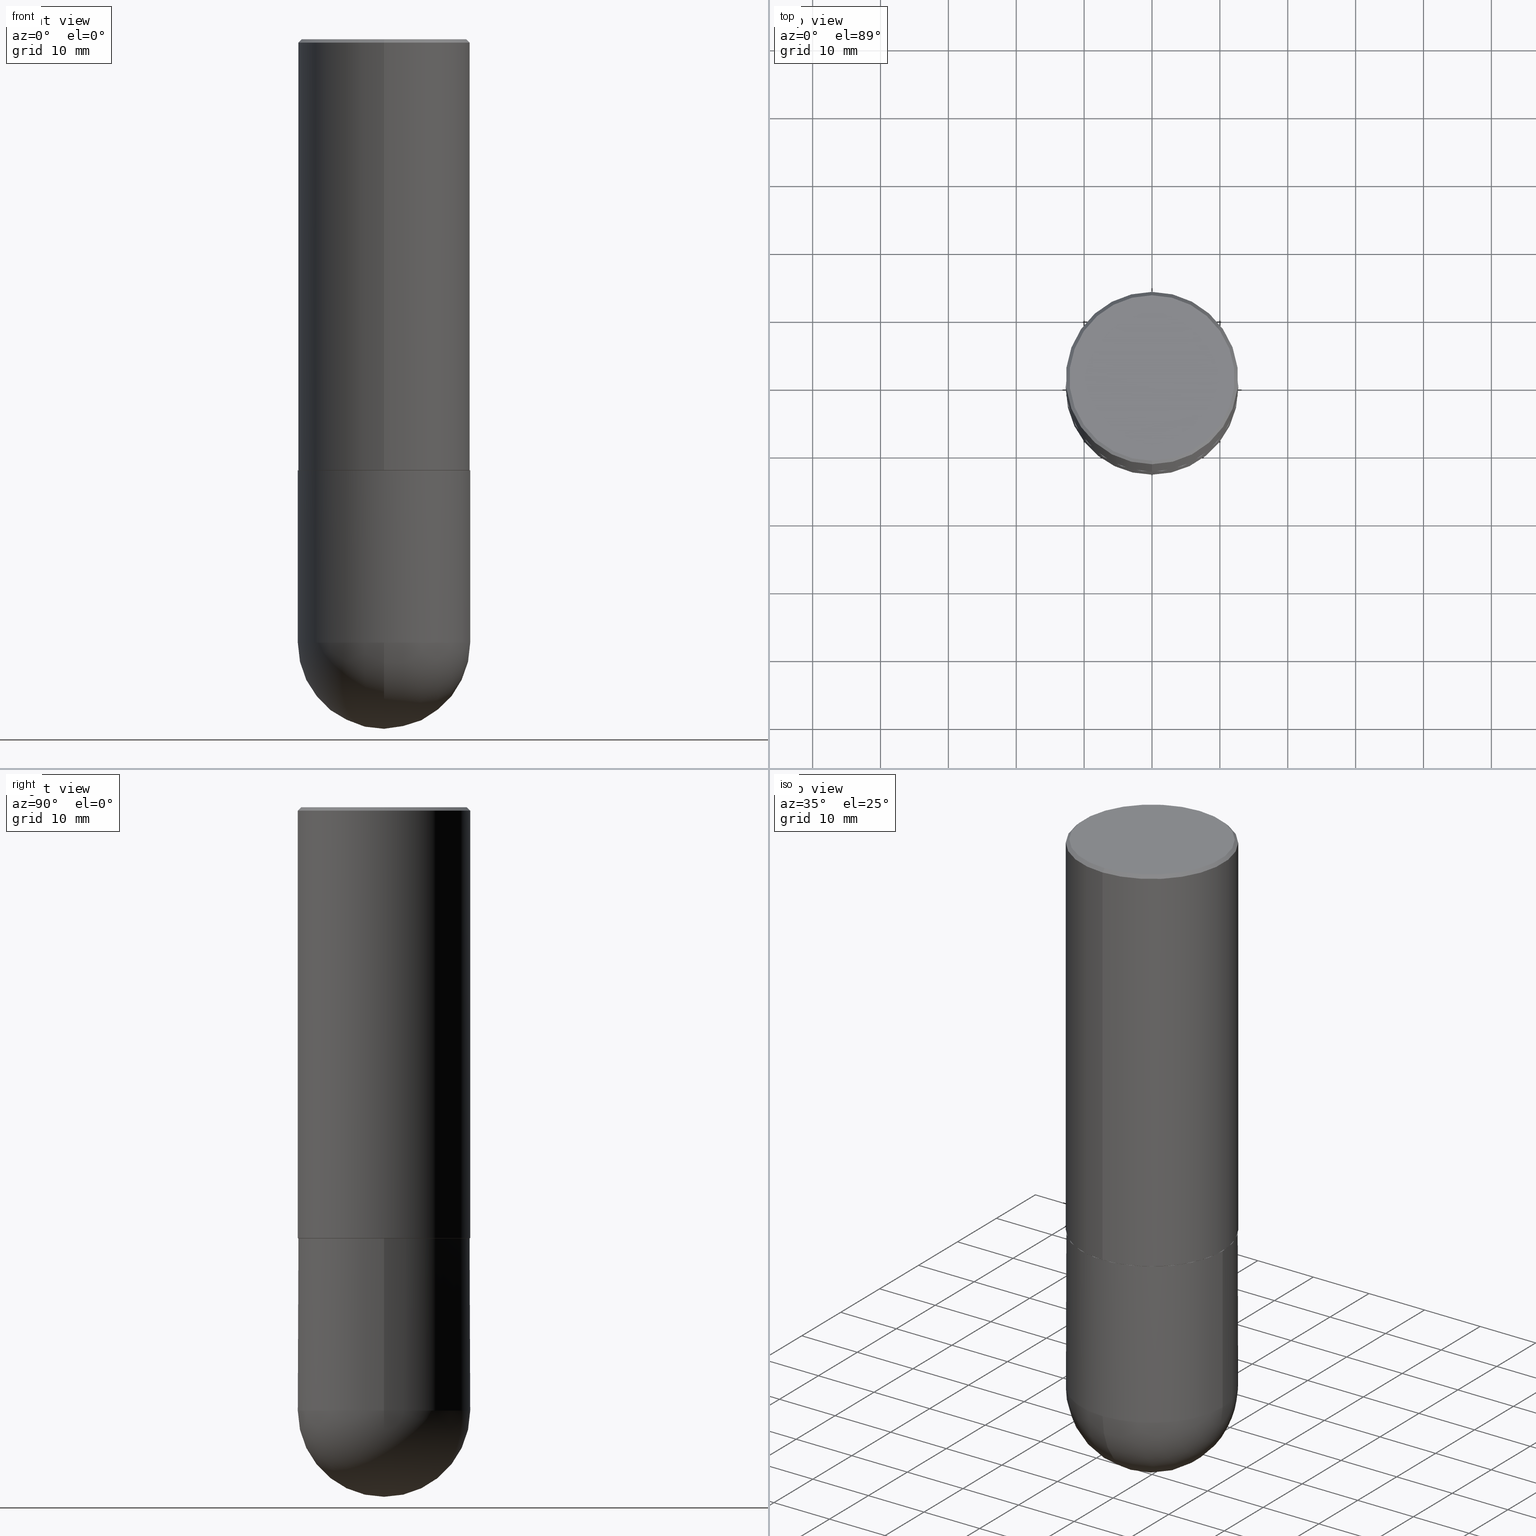
[diagram: canonical four-view strip — front | top / right | iso, engineering-drawing reading convention]
A machine part, canonical four-view strip (front | top / right | iso — engineering-drawing reading convention). The complete STEP part file that produces these views, byte-faithful:
ISO-10303-21;
HEADER;
FILE_DESCRIPTION (( 'STEP AP203' ),
    '1' );
FILE_NAME ('32506.STEP',
    '2024-02-21T17:46:32',
    ( '' ),
    ( '' ),
    'SwSTEP 2.0',
    'SolidWorks 2023',
    '' );
FILE_SCHEMA (( 'CONFIG_CONTROL_DESIGN' ));
ENDSEC;

DATA;
#1 = EDGE_CURVE ( 'NONE', #18, #377, #163, .T. ) ;
#2 = CARTESIAN_POINT ( 'NONE',  ( 3.545608251442960663E-15, 0.4989999999999912283, -2.500000000000001332 ) ) ;
#3 = VECTOR ( 'NONE', #141, 39.37007874015748143 ) ;
#4 = PRODUCT_RELATED_PRODUCT_CATEGORY ( 'detail', '', ( #400 ) ) ;
#5 = DIRECTION ( 'NONE',  ( 1.000000000000000000, -6.982962677686266711E-15, 0.000000000000000000 ) ) ;
#6 = PERSON_AND_ORGANIZATION_ROLE ( 'creator' ) ;
#7 = VERTEX_POINT ( 'NONE', #109 ) ;
#8 = CARTESIAN_POINT ( 'NONE',  ( 8.228021043734090721E-29, -1.269436705409105806E-14, -3.500000000000000000 ) ) ;
#9 = DIRECTION ( 'NONE',  ( -1.000000000000000000, 7.105427357601001070E-15, -4.926315508542082329E-29 ) ) ;
#10 = ORIENTED_EDGE ( 'NONE', *, *, #105, .F. ) ;
#11 = EDGE_LOOP ( 'NONE', ( #173, #112, #302, #232, #179 ) ) ;
#12 = AXIS2_PLACEMENT_3D ( 'NONE', #265, #396, #231 ) ;
#13 = ORIENTED_EDGE ( 'NONE', *, *, #219, .F. ) ;
#14 = PERSON_AND_ORGANIZATION_ROLE ( 'classification_officer' ) ;
#15 = EDGE_LOOP ( 'NONE', ( #234, #314, #293, #328 ) ) ;
#16 = CARTESIAN_POINT ( 'NONE',  ( 0.000000000000000000, 0.000000000000000000, 0.000000000000000000 ) ) ;
#17 = APPROVAL_DATE_TIME ( #53, #156 ) ;
#18 = VERTEX_POINT ( 'NONE', #32 ) ;
#19 = AXIS2_PLACEMENT_3D ( 'NONE', #325, #287, #385 ) ;
#20 = EDGE_CURVE ( 'NONE', #77, #339, #379, .T. ) ;
#21 = DIRECTION ( 'NONE',  ( 1.000000000000000000, -6.982962677686266711E-15, 0.000000000000000000 ) ) ;
#22 = CC_DESIGN_PERSON_AND_ORGANIZATION_ASSIGNMENT ( #338, #6, ( #327 ) ) ;
#23 = DIRECTION ( 'NONE',  ( -2.446673915175560132E-29, 3.489755554178314733E-15, 1.000000000000000000 ) ) ;
#24 = EDGE_CURVE ( 'NONE', #339, #77, #355, .T. ) ;
#25 = VECTOR ( 'NONE', #62, 39.37007874015748143 ) ;
#26 = CARTESIAN_POINT ( 'NONE',  ( 3.491481338843217763E-15, 0.4999999999999876765, -3.500000000000000888 ) ) ;
#27 = ORIENTED_EDGE ( 'NONE', *, *, #97, .T. ) ;
#28 = CIRCLE ( 'NONE', #125, 0.4989999999999999991 ) ;
#29 = CARTESIAN_POINT ( 'NONE',  ( 3.351822085289407153E-15, 0.4799999999999999267, -1.624274704443945561E-15 ) ) ;
#30 = CIRCLE ( 'NONE', #66, 0.5000000000000000000 ) ;
#31 = EDGE_CURVE ( 'NONE', #146, #317, #263, .T. ) ;
#32 = CARTESIAN_POINT ( 'NONE',  ( 9.472134604056145415E-29, -1.440949155353394884E-14, -4.000000000000000000 ) ) ;
#33 = CARTESIAN_POINT ( 'NONE',  ( 3.552713678800533273E-15, 0.4999999999999916178, -2.499000000000001886 ) ) ;
#34 = ORIENTED_EDGE ( 'NONE', *, *, #391, .T. ) ;
#35 = DIRECTION ( 'NONE',  ( -6.982962677686265922E-15, -1.000000000000000000, 3.489755554178314733E-15 ) ) ;
#36 = FACE_OUTER_BOUND ( 'NONE', #245, .T. ) ;
#37 = ADVANCED_FACE ( 'NONE', ( #68 ), #363, .F. ) ;
#38 = ORIENTED_EDGE ( 'NONE', *, *, #210, .T. ) ;
#39 = DATE_TIME_ROLE ( 'creation_date' ) ;
#40 = DIRECTION ( 'NONE',  ( -2.446673915175560132E-29, 3.489755554178314733E-15, 1.000000000000000000 ) ) ;
#41 = EDGE_CURVE ( 'NONE', #318, #390, #28, .T. ) ;
#42 = PERSON_AND_ORGANIZATION ( #180, #176 ) ;
#43 = DATE_AND_TIME ( #46, #294 ) ;
#44 = LINE ( 'NONE', #349, #264 ) ;
#45 = LOCAL_TIME ( 12, 46, 32.00000000000000000, #278 ) ;
#46 = CALENDAR_DATE ( 2024, 21, 2 ) ;
#47 = PERSON_AND_ORGANIZATION ( #180, #176 ) ;
#48 = ORIENTED_EDGE ( 'NONE', *, *, #72, .T. ) ;
#49 = EDGE_CURVE ( 'NONE', #390, #318, #405, .T. ) ;
#50 = APPROVAL_STATUS ( 'not_yet_approved' ) ;
#51 = DIRECTION ( 'NONE',  ( -2.445468806185136597E-29, 3.491481338843145583E-15, 1.000000000000000000 ) ) ;
#52 = AXIS2_PLACEMENT_3D ( 'NONE', #164, #64, #101 ) ;
#53 = DATE_AND_TIME ( #240, #139 ) ;
#54 = CC_DESIGN_APPROVAL ( #156, ( #115 ) ) ;
#55 = SECURITY_CLASSIFICATION_LEVEL ( 'unclassified' ) ;
#56 = DIRECTION ( 'NONE',  ( 6.982962677686266711E-15, 1.000000000000000000, 0.000000000000000000 ) ) ;
#57 = ORIENTED_EDGE ( 'NONE', *, *, #311, .T. ) ;
#58 = AXIS2_PLACEMENT_3D ( 'NONE', #107, #308, #259 ) ;
#59 = AXIS2_PLACEMENT_3D ( 'NONE', #207, #174, #244 ) ;
#60 = ORIENTED_EDGE ( 'NONE', *, *, #148, .T. ) ;
#61 = CARTESIAN_POINT ( 'NONE',  ( -3.484498376165385415E-15, -0.4990000000000087144, -2.499999999999997780 ) ) ;
#62 = DIRECTION ( 'NONE',  ( 5.024295867790635654E-15, 0.7071067811869121700, 0.7071067811861828645 ) ) ;
#63 = VERTEX_POINT ( 'NONE', #140 ) ;
#64 = DIRECTION ( 'NONE',  ( -2.445468806185136597E-29, 3.491481338843145583E-15, 1.000000000000000000 ) ) ;
#65 = CARTESIAN_POINT ( 'NONE',  ( 6.114238114023726435E-29, -8.720899129891609258E-15, -2.499000000000000110 ) ) ;
#66 = AXIS2_PLACEMENT_3D ( 'NONE', #384, #182, #407 ) ;
#67 = CALENDAR_DATE ( 2024, 21, 2 ) ;
#68 = FACE_OUTER_BOUND ( 'NONE', #209, .T. ) ;
#69 = DIRECTION ( 'NONE',  ( 1.000000000000000000, -6.982962677686266711E-15, 0.000000000000000000 ) ) ;
#70 = APPROVAL_DATE_TIME ( #298, #282 ) ;
#71 = ORIENTED_EDGE ( 'NONE', *, *, #24, .T. ) ;
#72 = EDGE_CURVE ( 'NONE', #281, #352, #303, .T. ) ;
#73 = DIRECTION ( 'NONE',  ( -6.982962677686266711E-15, -1.000000000000000000, 3.278217592397114284E-15 ) ) ;
#74 = EDGE_LOOP ( 'NONE', ( #242, #227, #114, #230, #334 ) ) ;
#75 = AXIS2_PLACEMENT_3D ( 'NONE', #307, #208, #86 ) ;
#76 = CC_DESIGN_APPROVAL ( #282, ( #327 ) ) ;
#77 = VERTEX_POINT ( 'NONE', #336 ) ;
#78 = ADVANCED_FACE ( 'NONE', ( #36 ), #170, .T. ) ;
#79 = DATE_AND_TIME ( #142, #274 ) ;
#80 = DIRECTION ( 'NONE',  ( -2.446673915175560132E-29, 3.489755554178315128E-15, 1.000000000000000000 ) ) ;
#81 = ORIENTED_EDGE ( 'NONE', *, *, #102, .T. ) ;
#82 = ORIENTED_EDGE ( 'NONE', *, *, #154, .F. ) ;
#83 = PERSON_AND_ORGANIZATION ( #180, #176 ) ;
#84 = CIRCLE ( 'NONE', #204, 0.5000000000000002220 ) ;
#85 = EDGE_CURVE ( 'NONE', #341, #345, #346, .T. ) ;
#86 = DIRECTION ( 'NONE',  ( 6.982962677686265922E-15, 1.000000000000000000, -3.491643216902136408E-15 ) ) ;
#87 = ORIENTED_EDGE ( 'NONE', *, *, #41, .T. ) ;
#88 = DIRECTION ( 'NONE',  ( -2.445468806185136877E-29, 3.491481338843145188E-15, 1.000000000000000000 ) ) ;
#89 = CONICAL_SURFACE ( 'NONE', #394, 0.4989999999999999991, 0.7853981633979605359 ) ;
#90 = CYLINDRICAL_SURFACE ( 'NONE', #212, 0.5000000000000001110 ) ;
#91 = CARTESIAN_POINT ( 'NONE',  ( 3.491481338843133355E-15, 0.4999999999999999445, -0.02000000000000185310 ) ) ;
#92 = ORIENTED_EDGE ( 'NONE', *, *, #343, .F. ) ;
#93 = ORIENTED_EDGE ( 'NONE', *, *, #1, .T. ) ;
#94 = CARTESIAN_POINT ( 'NONE',  ( 6.116684787938899911E-29, -8.724388885445786044E-15, -2.499999999999999556 ) ) ;
#95 = PERSON_AND_ORGANIZATION ( #180, #176 ) ;
#96 = UNCERTAINTY_MEASURE_WITH_UNIT (LENGTH_MEASURE( 1.000000000000000082E-05 ), #340, 'distance_accuracy_value', 'NONE');
#97 = EDGE_CURVE ( 'NONE', #352, #317, #236, .T. ) ;
#98 = LINE ( 'NONE', #61, #3 ) ;
#99 = CYLINDRICAL_SURFACE ( 'NONE', #361, 0.5000000000000000000 ) ;
#100 = ORIENTED_EDGE ( 'NONE', *, *, #148, .F. ) ;
#101 = DIRECTION ( 'NONE',  ( 1.000000000000000000, -6.982962677686269077E-15, 0.000000000000000000 ) ) ;
#102 = EDGE_CURVE ( 'NONE', #123, #7, #292, .T. ) ;
#103 = ORIENTED_EDGE ( 'NONE', *, *, #20, .T. ) ;
#104 = CONICAL_SURFACE ( 'NONE', #75, 0.5000000000000000000, 0.7853981633974446153 ) ;
#105 = EDGE_CURVE ( 'NONE', #339, #146, #44, .T. ) ;
#106 = CARTESIAN_POINT ( 'NONE',  ( 6.116684787938899911E-29, -8.724388885445786044E-15, -2.499999999999999556 ) ) ;
#107 = CARTESIAN_POINT ( 'NONE',  ( 6.116684787938899911E-29, -8.724388885445786044E-15, -2.499999999999999556 ) ) ;
#108 = DIRECTION ( 'NONE',  ( -2.446673915175560132E-29, 3.489755554178314733E-15, 1.000000000000000000 ) ) ;
#109 = CARTESIAN_POINT ( 'NONE',  ( -0.5000000000000000000, -6.921730337728935424E-15, -2.500000000000000000 ) ) ;
#110 = AXIS2_PLACEMENT_3D ( 'NONE', #165, #225, #196 ) ;
#111 = AXIS2_PLACEMENT_3D ( 'NONE', #178, #239, #315 ) ;
#112 = ORIENTED_EDGE ( 'NONE', *, *, #381, .T. ) ;
#113 = APPROVAL_ROLE ( '' ) ;
#114 = ORIENTED_EDGE ( 'NONE', *, *, #102, .F. ) ;
#115 = PRODUCT_DEFINITION ( 'UNKNOWN', '', #327, #300 ) ;
#116 = ADVANCED_FACE ( 'NONE', ( #310 ), #276, .F. ) ;
#117 = AXIS2_PLACEMENT_3D ( 'NONE', #65, #393, #197 ) ;
#118 = AXIS2_PLACEMENT_3D ( 'NONE', #16, #319, #152 ) ;
#119 = CARTESIAN_POINT ( 'NONE',  ( 3.491481338843133355E-15, 0.4999999999999999445, -0.02000000000000185310 ) ) ;
#120 = APPROVAL_DATE_TIME ( #279, #155 ) ;
#121 = EDGE_CURVE ( 'NONE', #318, #352, #124, .T. ) ;
#122 = CARTESIAN_POINT ( 'NONE',  ( 0.5000000000000000000, -3.491481338843133355E-15, 2.438088387897967896E-29 ) ) ;
#123 = VERTEX_POINT ( 'NONE', #248 ) ;
#124 = LINE ( 'NONE', #2, #25 ) ;
#125 = AXIS2_PLACEMENT_3D ( 'NONE', #106, #40, #134 ) ;
#126 = ADVANCED_FACE ( 'NONE', ( #383 ), #90, .T. ) ;
#127 = LINE ( 'NONE', #119, #249 ) ;
#128 = FACE_OUTER_BOUND ( 'NONE', #172, .T. ) ;
#129 = LINE ( 'NONE', #218, #406 ) ;
#130 = AXIS2_PLACEMENT_3D ( 'NONE', #94, #288, #269 ) ;
#131 = CARTESIAN_POINT ( 'NONE',  ( -3.484498376165385415E-15, -0.4990000000000087144, -2.499999999999997780 ) ) ;
#132 =( LENGTH_UNIT ( ) NAMED_UNIT ( * ) SI_UNIT ( $, .METRE. ) );
#133 = FACE_OUTER_BOUND ( 'NONE', #74, .T. ) ;
#134 = DIRECTION ( 'NONE',  ( -6.982962677686265922E-15, -1.000000000000000000, 3.284787166730577015E-15 ) ) ;
#135 = ADVANCED_FACE ( 'NONE', ( #133 ), #99, .T. ) ;
#136 = DIRECTION ( 'NONE',  ( 1.000000000000000000, -6.982962677686266711E-15, 4.876176775795935793E-29 ) ) ;
#137 = EDGE_LOOP ( 'NONE', ( #92, #93, #277, #144 ) ) ;
#138 = AXIS2_PLACEMENT_3D ( 'NONE', #305, #398, #347 ) ;
#139 = LOCAL_TIME ( 12, 46, 32.00000000000000000, #359 ) ;
#140 = CARTESIAN_POINT ( 'NONE',  ( 0.5000000000000000000, -1.396592535537257286E-14, -3.499999999999999112 ) ) ;
#141 = DIRECTION ( 'NONE',  ( -4.937700262167077130E-15, -0.7071067811869072850, 0.7071067811861877495 ) ) ;
#142 = CALENDAR_DATE ( 2024, 21, 2 ) ;
#143 = CARTESIAN_POINT ( 'NONE',  ( 3.491481338843194098E-15, 0.4999999999999912292, -2.500000000000001776 ) ) ;
#144 = ORIENTED_EDGE ( 'NONE', *, *, #85, .F. ) ;
#145 =( GEOMETRIC_REPRESENTATION_CONTEXT ( 3 ) GLOBAL_UNCERTAINTY_ASSIGNED_CONTEXT ( ( #96 ) ) GLOBAL_UNIT_ASSIGNED_CONTEXT ( ( #340, #369, #168 ) ) REPRESENTATION_CONTEXT ( 'NONE', 'WORKASPACE' ) );
#146 = VERTEX_POINT ( 'NONE', #233 ) ;
#147 = CARTESIAN_POINT ( 'NONE',  ( 8.559140821647976968E-29, -1.222018468595100619E-14, -3.499999999999999112 ) ) ;
#148 = EDGE_CURVE ( 'NONE', #352, #281, #84, .T. ) ;
#149 = CC_DESIGN_DATE_AND_TIME_ASSIGNMENT ( #79, #39, ( #115 ) ) ;
#150 = ORIENTED_EDGE ( 'NONE', *, *, #20, .F. ) ;
#151 = PERSON_AND_ORGANIZATION ( #180, #176 ) ;
#152 = DIRECTION ( 'NONE',  ( -6.982962677686265922E-15, -1.000000000000000000, 3.489755554178314733E-15 ) ) ;
#153 = LINE ( 'NONE', #122, #221 ) ;
#154 = EDGE_CURVE ( 'NONE', #377, #63, #409, .T. ) ;
#155 = APPROVAL ( #50, 'UNSPECIFIED' ) ;
#156 = APPROVAL ( #331, 'UNSPECIFIED' ) ;
#157 = LINE ( 'NONE', #160, #313 ) ;
#158 = AXIS2_PLACEMENT_3D ( 'NONE', #250, #23, #351 ) ;
#159 = LOCAL_TIME ( 12, 46, 32.00000000000000000, #199 ) ;
#160 = CARTESIAN_POINT ( 'NONE',  ( -0.5000000000000000000, 3.552713678800500929E-15, -2.459467545127452891E-29 ) ) ;
#161 = ORIENTED_EDGE ( 'NONE', *, *, #49, .T. ) ;
#162 = FACE_OUTER_BOUND ( 'NONE', #306, .T. ) ;
#163 = CIRCLE ( 'NONE', #333, 0.5000000000000002220 ) ;
#164 = CARTESIAN_POINT ( 'NONE',  ( 6.113672015462842613E-29, -8.728703347107864943E-15, -2.500000000000000000 ) ) ;
#165 = CARTESIAN_POINT ( 'NONE',  ( -2.486210284722413799E-45, 3.546147321124618175E-31, 1.016159231232910999E-16 ) ) ;
#166 = DIRECTION ( 'NONE',  ( -2.445468806185136597E-29, 3.491481338843145583E-15, 1.000000000000000000 ) ) ;
#167 = CARTESIAN_POINT ( 'NONE',  ( 4.893347830351146574E-31, -6.979511108356666888E-17, -0.02000000000000010797 ) ) ;
#168 =( NAMED_UNIT ( * ) SI_UNIT ( $, .STERADIAN. ) SOLID_ANGLE_UNIT ( ) );
#169 = FACE_OUTER_BOUND ( 'NONE', #378, .T. ) ;
#170 = CYLINDRICAL_SURFACE ( 'NONE', #118, 0.5000000000000001110 ) ;
#171 = AXIS2_PLACEMENT_3D ( 'NONE', #147, #51, #21 ) ;
#172 = EDGE_LOOP ( 'NONE', ( #161, #299, #187, #309 ) ) ;
#173 = ORIENTED_EDGE ( 'NONE', *, *, #271, .F. ) ;
#174 = DIRECTION ( 'NONE',  ( -2.445468806185136597E-29, 3.491481338843145583E-15, 1.000000000000000000 ) ) ;
#175 = APPROVAL_PERSON_ORGANIZATION ( #193, #156, #223 ) ;
#176 = ORGANIZATION ( 'UNSPECIFIED', 'UNSPECIFIED', '' ) ;
#177 = DATE_TIME_ROLE ( 'classification_date' ) ;
#178 = CARTESIAN_POINT ( 'NONE',  ( 6.116684787938901032E-29, -8.724388885445787622E-15, -2.500000000000000000 ) ) ;
#179 = ORIENTED_EDGE ( 'NONE', *, *, #391, .F. ) ;
#180 = PERSON ( 'UNSPECIFIED', 'UNSPECIFIED', 'UNSPECIFIED', ('UNSPECIFIED'), ('UNSPECIFIED'), ('UNSPECIFIED') ) ;
#181 = ADVANCED_FACE ( 'NONE', ( #198 ), #270, .T. ) ;
#182 = DIRECTION ( 'NONE',  ( -2.445468806185136597E-29, 3.491481338843145583E-15, 1.000000000000000000 ) ) ;
#183 = CONICAL_SURFACE ( 'NONE', #255, 0.5000000000000000000, 0.7853981633974446153 ) ;
#184 = CC_DESIGN_SECURITY_CLASSIFICATION ( #205, ( #327 ) ) ;
#185 = DIRECTION ( 'NONE',  ( 4.937700262164529898E-15, 0.7071067811865424657, -0.7071067811865525687 ) ) ;
#186 = DIRECTION ( 'NONE',  ( 1.000000000000000000, -6.982962677686265922E-15, 4.883557194083112340E-29 ) ) ;
#187 = ORIENTED_EDGE ( 'NONE', *, *, #72, .F. ) ;
#188 = CC_DESIGN_PERSON_AND_ORGANIZATION_ASSIGNMENT ( #95, #222, ( #400 ) ) ;
#189 = CARTESIAN_POINT ( 'NONE',  ( -0.5000000000000000000, -6.921730337728939368E-15, -3.499999999999999112 ) ) ;
#190 = ORIENTED_EDGE ( 'NONE', *, *, #31, .F. ) ;
#191 = DIRECTION ( 'NONE',  ( -2.446673915175560132E-29, 3.489755554178315128E-15, 1.000000000000000000 ) ) ;
#192 = ADVANCED_FACE ( 'NONE', ( #169 ), #104, .T. ) ;
#193 = PERSON_AND_ORGANIZATION ( #180, #176 ) ;
#194 = FACE_OUTER_BOUND ( 'NONE', #373, .T. ) ;
#195 = COORDINATED_UNIVERSAL_TIME_OFFSET ( 5, 0, .BEHIND. ) ;
#196 = DIRECTION ( 'NONE',  ( -6.982962677686265922E-15, -1.000000000000000000, 3.489755554178314733E-15 ) ) ;
#197 = DIRECTION ( 'NONE',  ( -6.982962677686266711E-15, -1.000000000000000000, 3.278217592397114284E-15 ) ) ;
#198 = FACE_OUTER_BOUND ( 'NONE', #137, .T. ) ;
#199 = COORDINATED_UNIVERSAL_TIME_OFFSET ( 5, 0, .BEHIND. ) ;
#200 = EDGE_LOOP ( 'NONE', ( #48, #27, #190, #275 ) ) ;
#201 = PRODUCT_DEFINITION_SHAPE ( 'NONE', 'NONE',  #115 ) ;
#202 = DIRECTION ( 'NONE',  ( -2.445468806185136597E-29, 3.491481338843145583E-15, 1.000000000000000000 ) ) ;
#203 = ORIENTED_EDGE ( 'NONE', *, *, #97, .F. ) ;
#204 = AXIS2_PLACEMENT_3D ( 'NONE', #372, #108, #73 ) ;
#205 = SECURITY_CLASSIFICATION ( '', '', #55 ) ;
#206 = EDGE_LOOP ( 'NONE', ( #344, #87, #367, #100 ) ) ;
#207 = CARTESIAN_POINT ( 'NONE',  ( 6.113672015462842613E-29, -8.728703347107864943E-15, -2.500000000000000000 ) ) ;
#208 = DIRECTION ( 'NONE',  ( 2.446673915175560132E-29, -3.489755554178314733E-15, -1.000000000000000000 ) ) ;
#209 = EDGE_LOOP ( 'NONE', ( #81, #34 ) ) ;
#210 = EDGE_CURVE ( 'NONE', #281, #146, #129, .T. ) ;
#211 = CLOSED_SHELL ( 'NONE', ( #350, #126, #301, #192, #78, #273, #116, #411 ) ) ;
#212 = AXIS2_PLACEMENT_3D ( 'NONE', #410, #289, #35 ) ;
#213 = CC_DESIGN_APPROVAL ( #155, ( #205 ) ) ;
#214 = ORIENTED_EDGE ( 'NONE', *, *, #311, .F. ) ;
#215 = FACE_OUTER_BOUND ( 'NONE', #15, .T. ) ;
#216 = DIRECTION ( 'NONE',  ( -6.982962677686265922E-15, -1.000000000000000000, 3.284787166730577015E-15 ) ) ;
#217 = AXIS2_PLACEMENT_3D ( 'NONE', #29, #295, #364 ) ;
#218 = CARTESIAN_POINT ( 'NONE',  ( -3.491481338843133750E-15, -0.5000000000000001110, 1.744877777089157761E-15 ) ) ;
#219 = EDGE_CURVE ( 'NONE', #63, #341, #30, .T. ) ;
#220 = CC_DESIGN_PERSON_AND_ORGANIZATION_ASSIGNMENT ( #47, #256, ( #115 ) ) ;
#221 = VECTOR ( 'NONE', #251, 39.37007874015748143 ) ;
#222 = PERSON_AND_ORGANIZATION_ROLE ( 'design_owner' ) ;
#223 = APPROVAL_ROLE ( '' ) ;
#224 = EDGE_CURVE ( 'NONE', #63, #123, #153, .T. ) ;
#225 = DIRECTION ( 'NONE',  ( -2.446673915175560132E-29, 3.489755554178314733E-15, 1.000000000000000000 ) ) ;
#226 = APPROVAL_ROLE ( '' ) ;
#227 = ORIENTED_EDGE ( 'NONE', *, *, #271, .T. ) ;
#228 = APPROVAL_PERSON_ORGANIZATION ( #284, #155, #113 ) ;
#229 = DIRECTION ( 'NONE',  ( -2.445468806185136597E-29, 3.491481338843145583E-15, 1.000000000000000000 ) ) ;
#230 = ORIENTED_EDGE ( 'NONE', *, *, #224, .F. ) ;
#231 = DIRECTION ( 'NONE',  ( 1.000000000000000000, 0.000000000000000000, 0.000000000000000000 ) ) ;
#232 = ORIENTED_EDGE ( 'NONE', *, *, #224, .T. ) ;
#233 = CARTESIAN_POINT ( 'NONE',  ( -3.430248998885764992E-15, -0.5000000000000001110, -0.01999999999999835937 ) ) ;
#234 = ORIENTED_EDGE ( 'NONE', *, *, #24, .F. ) ;
#235 = CIRCLE ( 'NONE', #52, 0.5000000000000000000 ) ;
#236 = LINE ( 'NONE', #376, #304 ) ;
#237 = EDGE_LOOP ( 'NONE', ( #374, #252 ) ) ;
#238 = DIRECTION ( 'NONE',  ( -4.851104656540946131E-15, -0.7071067811865473507, -0.7071067811865476838 ) ) ;
#239 = DIRECTION ( 'NONE',  ( -2.446673915175559852E-29, 3.489755554178315128E-15, 1.000000000000000000 ) ) ;
#240 = CALENDAR_DATE ( 2024, 21, 2 ) ;
#241 = CIRCLE ( 'NONE', #158, 0.5000000000000000000 ) ;
#242 = ORIENTED_EDGE ( 'NONE', *, *, #85, .T. ) ;
#243 = SHAPE_DEFINITION_REPRESENTATION ( #201, #316 ) ;
#244 = DIRECTION ( 'NONE',  ( 1.000000000000000000, -6.982962677686269077E-15, 0.000000000000000000 ) ) ;
#245 = EDGE_LOOP ( 'NONE', ( #203, #60, #38, #214 ) ) ;
#246 = CARTESIAN_POINT ( 'NONE',  ( 3.549160965121762351E-15, 0.4989999999999912283, -2.500000000000001332 ) ) ;
#247 = CARTESIAN_POINT ( 'NONE',  ( 0.000000000000000000, 0.000000000000000000, 0.000000000000000000 ) ) ;
#248 = CARTESIAN_POINT ( 'NONE',  ( 0.5000000000000000000, -1.222018468595099830E-14, -2.500000000000000000 ) ) ;
#249 = VECTOR ( 'NONE', #185, 39.37007874015748143 ) ;
#250 = CARTESIAN_POINT ( 'NONE',  ( 4.893347830351146574E-31, -6.979511108356666888E-17, -0.02000000000000010797 ) ) ;
#251 = DIRECTION ( 'NONE',  ( -2.445468806185136877E-29, 3.491481338843145188E-15, 1.000000000000000000 ) ) ;
#252 = ORIENTED_EDGE ( 'NONE', *, *, #41, .F. ) ;
#253 = APPLICATION_CONTEXT ( 'configuration controlled 3d designs of mechanical parts and assemblies' ) ;
#254 = DIRECTION ( 'NONE',  ( -2.446673915175560132E-29, 3.489755554178314733E-15, 1.000000000000000000 ) ) ;
#255 = AXIS2_PLACEMENT_3D ( 'NONE', #329, #412, #322 ) ;
#256 = PERSON_AND_ORGANIZATION_ROLE ( 'creator' ) ;
#257 = LENGTH_MEASURE_WITH_UNIT ( LENGTH_MEASURE( 0.02539999999999999897 ), #132 );
#258 = CARTESIAN_POINT ( 'NONE',  ( 0.000000000000000000, 0.000000000000000000, 0.000000000000000000 ) ) ;
#259 = DIRECTION ( 'NONE',  ( -6.982962677686265922E-15, -1.000000000000000000, 3.284787166730577015E-15 ) ) ;
#260 = APPLICATION_CONTEXT ( 'configuration controlled 3d designs of mechanical parts and assemblies' ) ;
#261 = CARTESIAN_POINT ( 'NONE',  ( 8.559140821647976968E-29, -1.222018468595100619E-14, -3.499999999999999112 ) ) ;
#262 = CARTESIAN_POINT ( 'NONE',  ( -2.486210284722413799E-45, 3.546147321124618175E-31, 1.016159231232910999E-16 ) ) ;
#263 = CIRCLE ( 'NONE', #312, 0.5000000000000000000 ) ;
#264 = VECTOR ( 'NONE', #238, 39.37007874015748143 ) ;
#265 = CARTESIAN_POINT ( 'NONE',  ( 0.000000000000000000, 0.000000000000000000, 0.000000000000000000 ) ) ;
#266 = DIRECTION ( 'NONE',  ( -6.982962677686265922E-15, -1.000000000000000000, 3.491643216902136408E-15 ) ) ;
#267 = ADVANCED_FACE ( 'NONE', ( #162 ), #380, .T. ) ;
#268 = CC_DESIGN_PERSON_AND_ORGANIZATION_ASSIGNMENT ( #83, #353, ( #327 ) ) ;
#269 = DIRECTION ( 'NONE',  ( -6.982962677686265922E-15, -1.000000000000000000, 3.284787166730577015E-15 ) ) ;
#270 = SPHERICAL_SURFACE ( 'NONE', #138, 0.5000000000000002220 ) ;
#271 = EDGE_CURVE ( 'NONE', #345, #7, #157, .T. ) ;
#272 = DIRECTION ( 'NONE',  ( -1.000000000000000000, 6.982962677686265922E-15, -4.876176775795935793E-29 ) ) ;
#273 = ADVANCED_FACE ( 'NONE', ( #408 ), #89, .T. ) ;
#274 = LOCAL_TIME ( 12, 46, 32.00000000000000000, #195 ) ;
#275 = ORIENTED_EDGE ( 'NONE', *, *, #210, .F. ) ;
#276 = PLANE ( 'NONE',  #111 ) ;
#277 = ORIENTED_EDGE ( 'NONE', *, *, #381, .F. ) ;
#278 = COORDINATED_UNIVERSAL_TIME_OFFSET ( 5, 0, .BEHIND. ) ;
#279 = DATE_AND_TIME ( #348, #45 ) ;
#280 = AXIS2_PLACEMENT_3D ( 'NONE', #358, #186, #56 ) ;
#281 = VERTEX_POINT ( 'NONE', #387 ) ;
#282 = APPROVAL ( #392, 'UNSPECIFIED' ) ;
#283 = CARTESIAN_POINT ( 'NONE',  ( 6.116684787938899911E-29, -8.724388885445786044E-15, -2.499999999999999556 ) ) ;
#284 = PERSON_AND_ORGANIZATION ( #180, #176 ) ;
#285 = CARTESIAN_POINT ( 'NONE',  ( -3.361644018908049661E-15, -0.4799999999999999267, 1.776698589128881921E-15 ) ) ;
#286 = CYLINDRICAL_SURFACE ( 'NONE', #402, 0.5000000000000000000 ) ;
#287 = DIRECTION ( 'NONE',  ( -1.000000000000000000, 6.982962677686265922E-15, -4.883557194083113462E-29 ) ) ;
#288 = DIRECTION ( 'NONE',  ( -2.446673915175560132E-29, 3.489755554178314733E-15, 1.000000000000000000 ) ) ;
#289 = DIRECTION ( 'NONE',  ( -2.446673915175560132E-29, 3.489755554178314733E-15, 1.000000000000000000 ) ) ;
#290 = EDGE_CURVE ( 'NONE', #77, #317, #127, .T. ) ;
#291 = CLOSED_SHELL ( 'NONE', ( #135, #181, #267, #37, #330 ) ) ;
#292 = CIRCLE ( 'NONE', #59, 0.5000000000000000000 ) ;
#293 = ORIENTED_EDGE ( 'NONE', *, *, #31, .T. ) ;
#294 = LOCAL_TIME ( 12, 46, 32.00000000000000000, #403 ) ;
#295 = DIRECTION ( 'NONE',  ( 2.446673915175559852E-29, -3.489755554178315128E-15, -1.000000000000000000 ) ) ;
#296 = DIRECTION ( 'NONE',  ( 2.438088387897960049E-29, -3.491481338843145188E-15, -1.000000000000000000 ) ) ;
#297 = MECHANICAL_CONTEXT ( 'NONE', #260, 'mechanical' ) ;
#298 = DATE_AND_TIME ( #67, #159 ) ;
#299 = ORIENTED_EDGE ( 'NONE', *, *, #121, .T. ) ;
#300 = DESIGN_CONTEXT ( 'detailed design', #253, 'design' ) ;
#301 = ADVANCED_FACE ( 'NONE', ( #215 ), #183, .T. ) ;
#302 = ORIENTED_EDGE ( 'NONE', *, *, #154, .T. ) ;
#303 = CIRCLE ( 'NONE', #117, 0.5000000000000002220 ) ;
#304 = VECTOR ( 'NONE', #80, 39.37007874015748143 ) ;
#305 = CARTESIAN_POINT ( 'NONE',  ( 8.228021043734090721E-29, -1.269436705409105806E-14, -3.500000000000000000 ) ) ;
#306 = EDGE_LOOP ( 'NONE', ( #360, #397, #13, #82 ) ) ;
#307 = CARTESIAN_POINT ( 'NONE',  ( 4.893347830351146574E-31, -6.979511108356666888E-17, -0.02000000000000010797 ) ) ;
#308 = DIRECTION ( 'NONE',  ( -2.446673915175560132E-29, 3.489755554178314733E-15, 1.000000000000000000 ) ) ;
#309 = ORIENTED_EDGE ( 'NONE', *, *, #389, .F. ) ;
#310 = FACE_OUTER_BOUND ( 'NONE', #237, .T. ) ;
#311 = EDGE_CURVE ( 'NONE', #317, #146, #241, .T. ) ;
#312 = AXIS2_PLACEMENT_3D ( 'NONE', #167, #395, #266 ) ;
#313 = VECTOR ( 'NONE', #88, 39.37007874015748143 ) ;
#314 = ORIENTED_EDGE ( 'NONE', *, *, #105, .T. ) ;
#315 = DIRECTION ( 'NONE',  ( -6.982962677686265922E-15, -1.000000000000000000, 3.489755554178315128E-15 ) ) ;
#316 = ADVANCED_BREP_SHAPE_REPRESENTATION ( '32506', ( #357, #354, #12 ), #145 ) ;
#317 = VERTEX_POINT ( 'NONE', #91 ) ;
#318 = VERTEX_POINT ( 'NONE', #246 ) ;
#319 = DIRECTION ( 'NONE',  ( -2.446673915175560132E-29, 3.489755554178314733E-15, 1.000000000000000000 ) ) ;
#320 = DIMENSIONAL_EXPONENTS ( 1.000000000000000000, 0.000000000000000000, 0.000000000000000000, 0.000000000000000000, 0.000000000000000000, 0.000000000000000000, 0.000000000000000000 ) ;
#321 = CIRCLE ( 'NONE', #366, 0.5000000000000000000 ) ;
#322 = DIRECTION ( 'NONE',  ( 6.982962677686265922E-15, 1.000000000000000000, -3.491643216902136408E-15 ) ) ;
#323 = FACE_OUTER_BOUND ( 'NONE', #11, .T. ) ;
#324 = DIRECTION ( 'NONE',  ( -2.445468806185136597E-29, 3.491481338843145583E-15, 1.000000000000000000 ) ) ;
#325 = CARTESIAN_POINT ( 'NONE',  ( 8.228021043734090721E-29, -1.269436705409105806E-14, -3.500000000000000000 ) ) ;
#326 = AXIS2_PLACEMENT_3D ( 'NONE', #261, #229, #69 ) ;
#327 = PRODUCT_DEFINITION_FORMATION_WITH_SPECIFIED_SOURCE ( 'ANY', '', #400, .NOT_KNOWN. ) ;
#328 = ORIENTED_EDGE ( 'NONE', *, *, #290, .F. ) ;
#329 = CARTESIAN_POINT ( 'NONE',  ( 4.893347830351146574E-31, -6.979511108356666888E-17, -0.02000000000000010797 ) ) ;
#330 = ADVANCED_FACE ( 'NONE', ( #323 ), #286, .T. ) ;
#331 = APPROVAL_STATUS ( 'not_yet_approved' ) ;
#332 = PLANE ( 'NONE',  #217 ) ;
#333 = AXIS2_PLACEMENT_3D ( 'NONE', #8, #9, #368 ) ;
#334 = ORIENTED_EDGE ( 'NONE', *, *, #219, .T. ) ;
#335 = CARTESIAN_POINT ( 'NONE',  ( -3.552713678800417310E-15, -0.5000000000000125455, -3.499999999999997780 ) ) ;
#336 = CARTESIAN_POINT ( 'NONE',  ( 3.421651712066270057E-15, 0.4799999999999999267, -1.573466742882299844E-15 ) ) ;
#337 = CARTESIAN_POINT ( 'NONE',  ( 8.559140821647976968E-29, -1.222018468595100619E-14, -3.499999999999999112 ) ) ;
#338 = PERSON_AND_ORGANIZATION ( #180, #176 ) ;
#339 = VERTEX_POINT ( 'NONE', #285 ) ;
#340 =( CONVERSION_BASED_UNIT ( 'INCH', #257 ) LENGTH_UNIT ( ) NAMED_UNIT ( #320 ) );
#341 = VERTEX_POINT ( 'NONE', #26 ) ;
#342 = CONICAL_SURFACE ( 'NONE', #130, 0.4989999999999999991, 0.7853981633979605359 ) ;
#343 = EDGE_CURVE ( 'NONE', #18, #341, #375, .T. ) ;
#344 = ORIENTED_EDGE ( 'NONE', *, *, #121, .F. ) ;
#345 = VERTEX_POINT ( 'NONE', #189 ) ;
#346 = CIRCLE ( 'NONE', #171, 0.5000000000000000000 ) ;
#347 = DIRECTION ( 'NONE',  ( 6.982962677686265922E-15, 1.000000000000000000, -3.278217592397114284E-15 ) ) ;
#348 = CALENDAR_DATE ( 2024, 21, 2 ) ;
#349 = CARTESIAN_POINT ( 'NONE',  ( -3.430248998885764992E-15, -0.5000000000000001110, -0.01999999999999835937 ) ) ;
#350 = ADVANCED_FACE ( 'NONE', ( #128 ), #342, .T. ) ;
#351 = DIRECTION ( 'NONE',  ( -6.982962677686265922E-15, -1.000000000000000000, 3.491643216902136408E-15 ) ) ;
#352 = VERTEX_POINT ( 'NONE', #33 ) ;
#353 = PERSON_AND_ORGANIZATION_ROLE ( 'design_supplier' ) ;
#354 = MANIFOLD_SOLID_BREP ( 'Body-Move/Copy2[2]', #211 ) ;
#355 = CIRCLE ( 'NONE', #401, 0.4799999999999999267 ) ;
#356 = APPROVAL_PERSON_ORGANIZATION ( #42, #282, #226 ) ;
#357 = MANIFOLD_SOLID_BREP ( 'Body-Move/Copy2[1]', #291 ) ;
#358 = CARTESIAN_POINT ( 'NONE',  ( 8.228021043734090721E-29, -1.269436705409105806E-14, -3.500000000000000000 ) ) ;
#359 = COORDINATED_UNIVERSAL_TIME_OFFSET ( 5, 0, .BEHIND. ) ;
#360 = ORIENTED_EDGE ( 'NONE', *, *, #1, .F. ) ;
#361 = AXIS2_PLACEMENT_3D ( 'NONE', #258, #166, #136 ) ;
#362 = APPLICATION_PROTOCOL_DEFINITION ( 'international standard', 'config_control_design', 1994, #253 ) ;
#363 = PLANE ( 'NONE',  #365 ) ;
#364 = DIRECTION ( 'NONE',  ( 6.982962677686265922E-15, 1.000000000000000000, -3.489755554178315128E-15 ) ) ;
#365 = AXIS2_PLACEMENT_3D ( 'NONE', #143, #296, #272 ) ;
#366 = AXIS2_PLACEMENT_3D ( 'NONE', #337, #202, #5 ) ;
#367 = ORIENTED_EDGE ( 'NONE', *, *, #389, .T. ) ;
#368 = DIRECTION ( 'NONE',  ( -7.105427357601001859E-15, -1.000000000000000000, 0.000000000000000000 ) ) ;
#369 =( NAMED_UNIT ( * ) PLANE_ANGLE_UNIT ( ) SI_UNIT ( $, .RADIAN. ) );
#370 = DIRECTION ( 'NONE',  ( -2.446673915175560132E-29, 3.489755554178314733E-15, 1.000000000000000000 ) ) ;
#371 = APPLICATION_PROTOCOL_DEFINITION ( 'international standard', 'config_control_design', 1994, #260 ) ;
#372 = CARTESIAN_POINT ( 'NONE',  ( 6.114238114023726435E-29, -8.720899129891609258E-15, -2.499000000000000110 ) ) ;
#373 = EDGE_LOOP ( 'NONE', ( #103, #71 ) ) ;
#374 = ORIENTED_EDGE ( 'NONE', *, *, #49, .F. ) ;
#375 = CIRCLE ( 'NONE', #280, 0.5000000000000002220 ) ;
#376 = CARTESIAN_POINT ( 'NONE',  ( 3.552713678800501718E-15, 0.5000000000000001110, -1.744877777089157761E-15 ) ) ;
#377 = VERTEX_POINT ( 'NONE', #335 ) ;
#378 = EDGE_LOOP ( 'NONE', ( #10, #150, #404, #57 ) ) ;
#379 = CIRCLE ( 'NONE', #110, 0.4799999999999999267 ) ;
#380 = SPHERICAL_SURFACE ( 'NONE', #19, 0.5000000000000002220 ) ;
#381 = EDGE_CURVE ( 'NONE', #345, #377, #321, .T. ) ;
#382 = DIRECTION ( 'NONE',  ( 1.000000000000000000, -6.982962677686266711E-15, 4.876176775795935793E-29 ) ) ;
#383 = FACE_OUTER_BOUND ( 'NONE', #200, .T. ) ;
#384 = CARTESIAN_POINT ( 'NONE',  ( 8.559140821647976968E-29, -1.222018468595100619E-14, -3.499999999999999112 ) ) ;
#385 = DIRECTION ( 'NONE',  ( 6.982962677686265922E-15, 1.000000000000000000, -3.278217592397114284E-15 ) ) ;
#386 = CC_DESIGN_PERSON_AND_ORGANIZATION_ASSIGNMENT ( #151, #14, ( #205 ) ) ;
#387 = CARTESIAN_POINT ( 'NONE',  ( -3.491481338843073796E-15, -0.5000000000000089928, -2.498999999999998778 ) ) ;
#388 = CC_DESIGN_DATE_AND_TIME_ASSIGNMENT ( #43, #177, ( #205 ) ) ;
#389 = EDGE_CURVE ( 'NONE', #390, #281, #98, .T. ) ;
#390 = VERTEX_POINT ( 'NONE', #131 ) ;
#391 = EDGE_CURVE ( 'NONE', #7, #123, #235, .T. ) ;
#392 = APPROVAL_STATUS ( 'not_yet_approved' ) ;
#393 = DIRECTION ( 'NONE',  ( -2.446673915175560132E-29, 3.489755554178314733E-15, 1.000000000000000000 ) ) ;
#394 = AXIS2_PLACEMENT_3D ( 'NONE', #283, #254, #216 ) ;
#395 = DIRECTION ( 'NONE',  ( -2.446673915175560132E-29, 3.489755554178314733E-15, 1.000000000000000000 ) ) ;
#396 = DIRECTION ( 'NONE',  ( 0.000000000000000000, 0.000000000000000000, 1.000000000000000000 ) ) ;
#397 = ORIENTED_EDGE ( 'NONE', *, *, #343, .T. ) ;
#398 = DIRECTION ( 'NONE',  ( -1.000000000000000000, 6.982962677686265922E-15, -4.883557194083113462E-29 ) ) ;
#399 = DIRECTION ( 'NONE',  ( -6.982962677686265922E-15, -1.000000000000000000, 3.489755554178314733E-15 ) ) ;
#400 = PRODUCT ( '32506', '32506', '', ( #297 ) ) ;
#401 = AXIS2_PLACEMENT_3D ( 'NONE', #262, #370, #399 ) ;
#402 = AXIS2_PLACEMENT_3D ( 'NONE', #247, #324, #382 ) ;
#403 = COORDINATED_UNIVERSAL_TIME_OFFSET ( 5, 0, .BEHIND. ) ;
#404 = ORIENTED_EDGE ( 'NONE', *, *, #290, .T. ) ;
#405 = CIRCLE ( 'NONE', #58, 0.4989999999999999991 ) ;
#406 = VECTOR ( 'NONE', #191, 39.37007874015748143 ) ;
#407 = DIRECTION ( 'NONE',  ( 1.000000000000000000, -6.982962677686266711E-15, 0.000000000000000000 ) ) ;
#408 = FACE_OUTER_BOUND ( 'NONE', #206, .T. ) ;
#409 = CIRCLE ( 'NONE', #326, 0.5000000000000000000 ) ;
#410 = CARTESIAN_POINT ( 'NONE',  ( 0.000000000000000000, 0.000000000000000000, 0.000000000000000000 ) ) ;
#411 = ADVANCED_FACE ( 'NONE', ( #194 ), #332, .F. ) ;
#412 = DIRECTION ( 'NONE',  ( 2.446673915175560132E-29, -3.489755554178314733E-15, -1.000000000000000000 ) ) ;
ENDSEC;
END-ISO-10303-21;
